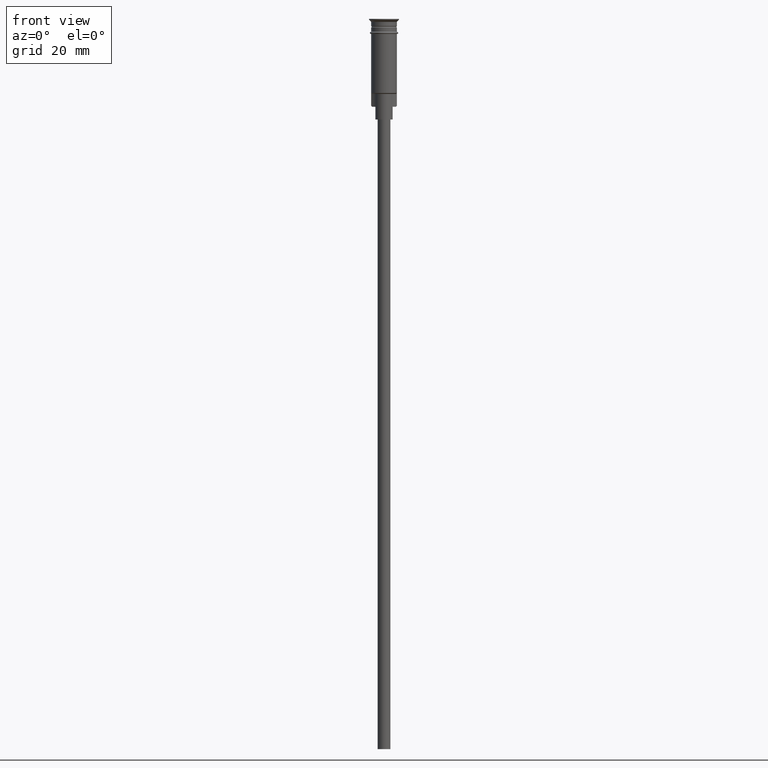
[diagram: clean part render]
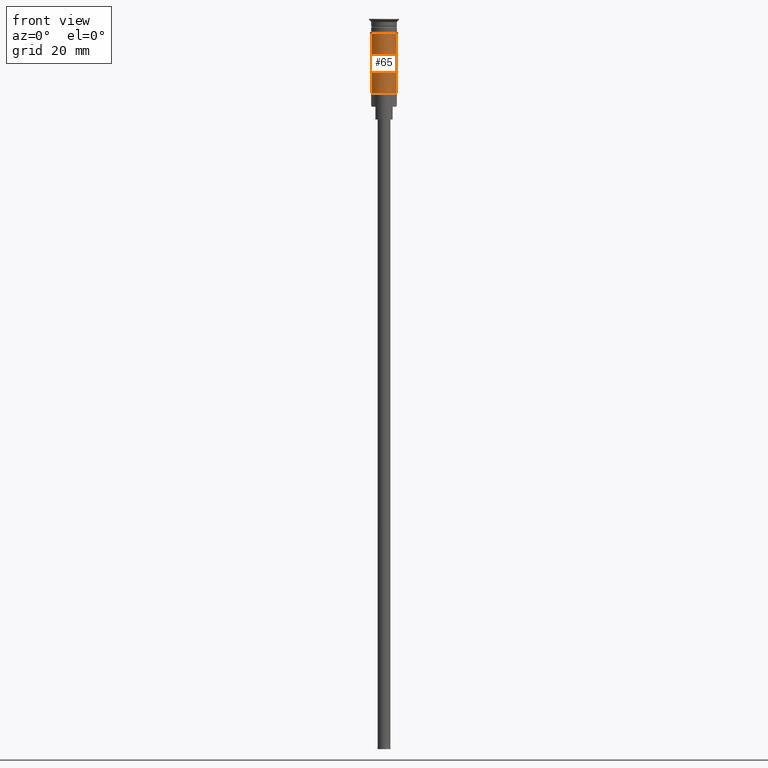
[diagram: same view with one face highlighted and labeled with its STEP entity id]
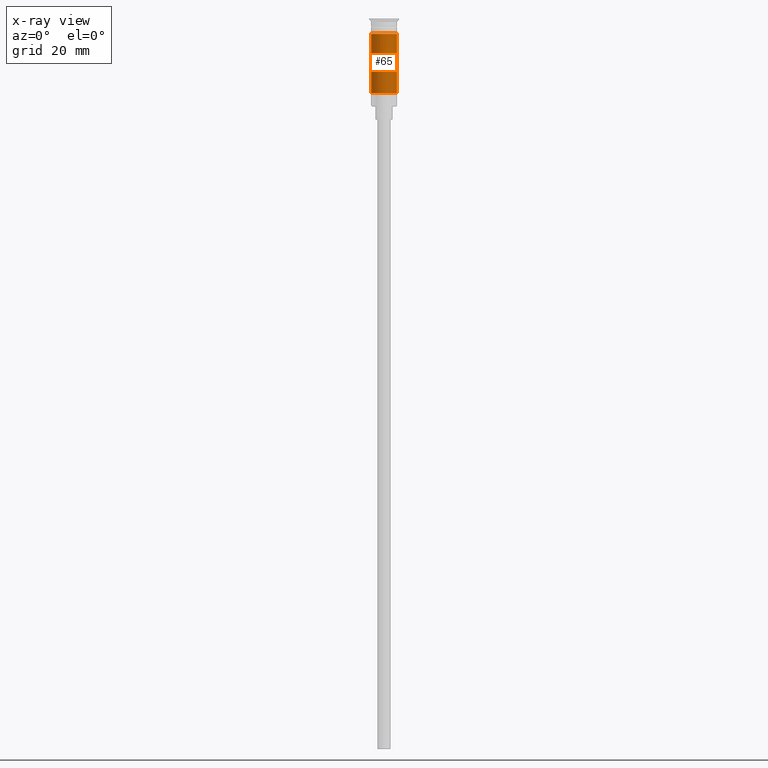
[diagram: x-ray of the same camera — body ghosted, the highlighted face saturated]
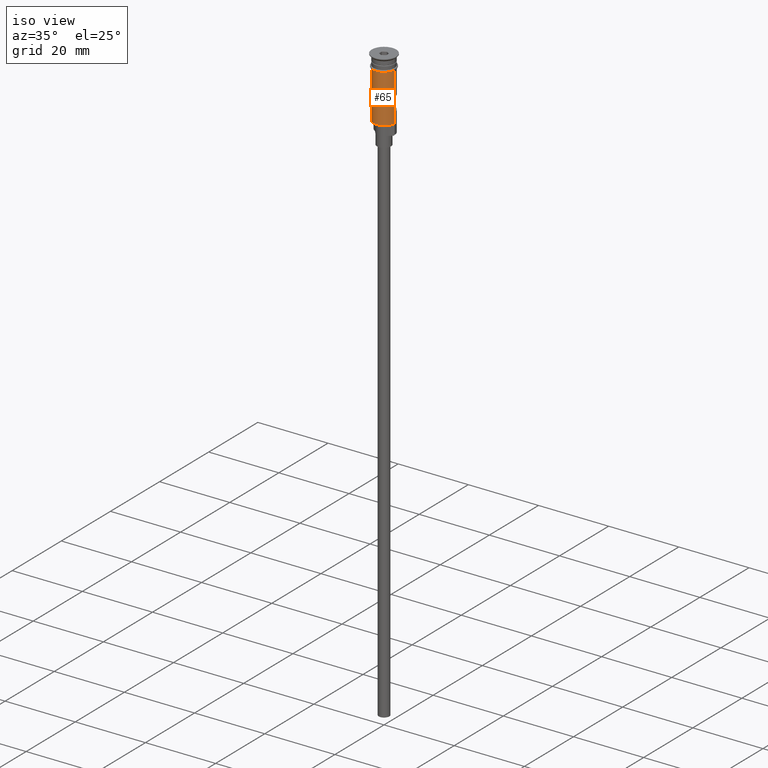
[diagram: same view with one face highlighted and labeled with its STEP entity id]
A machine part, front view. The second image highlights one B-rep face of the part: STEP entity #65.
The next image is the same camera in x-ray: the body ghosted, the highlighted face saturated — about 0% of this face is hidden behind the body in this view.
A second angle (iso view) of the same face is appended — the face is thin or edge-on in the first view.
In plain terms, the highlighted cylindrical surface (edge-blend (fillet) strip) has radius 3 mm, axis along (-0, -0, 1).
Its self-contained STEP definition (entity closure, byte-faithful):
#45 = DIRECTION ( 'NONE',  ( -0.000000000000000000, -0.000000000000000000, 1.000000000000000000 ) ) ;
#63 = VERTEX_POINT ( 'NONE', #143 ) ;
#65 = ADVANCED_FACE ( 'NONE', ( #648 ), #1387, .T. ) ;
#70 = ORIENTED_EDGE ( 'NONE', *, *, #958, .F. ) ;
#95 = EDGE_CURVE ( 'NONE', #63, #1208, #1133, .T. ) ;
#106 = VERTEX_POINT ( 'NONE', #513 ) ;
#132 = AXIS2_PLACEMENT_3D ( 'NONE', #1003, #45, #1128 ) ;
#143 = CARTESIAN_POINT ( 'NONE',  ( 2.999999999999996891, 3.673940397442055924E-16, -17.30000000000000782 ) ) ;
#144 = DIRECTION ( 'NONE',  ( -0.000000000000000000, -0.000000000000000000, 1.000000000000000000 ) ) ;
#198 = VERTEX_POINT ( 'NONE', #803 ) ;
#237 = CARTESIAN_POINT ( 'NONE',  ( 2.999999999999998668, 0.000000000000000000, -3.499999999999998668 ) ) ;
#292 = VECTOR ( 'NONE', #1504, 1000.000000000000000 ) ;
#396 = DIRECTION ( 'NONE',  ( -1.000000000000000000, 0.000000000000000000, 0.000000000000000000 ) ) ;
#439 = CARTESIAN_POINT ( 'NONE',  ( 0.000000000000000000, 0.000000000000000000, -3.499999999999998668 ) ) ;
#441 = ORIENTED_EDGE ( 'NONE', *, *, #95, .T. ) ;
#510 = LINE ( 'NONE', #1009, #292 ) ;
#513 = CARTESIAN_POINT ( 'NONE',  ( -2.999999999999999112, 3.673940397442058389E-16, -3.499999999999998668 ) ) ;
#626 = DIRECTION ( 'NONE',  ( -0.000000000000000000, -0.000000000000000000, 1.000000000000000000 ) ) ;
#647 = CIRCLE ( 'NONE', #1122, 2.999999999999996891 ) ;
#648 = FACE_OUTER_BOUND ( 'NONE', #851, .T. ) ;
#750 = VECTOR ( 'NONE', #626, 1000.000000000000000 ) ;
#797 = ORIENTED_EDGE ( 'NONE', *, *, #1312, .T. ) ;
#803 = CARTESIAN_POINT ( 'NONE',  ( -2.999999999999995115, 0.000000000000000000, -17.30000000000000782 ) ) ;
#851 = EDGE_LOOP ( 'NONE', ( #70, #797, #441, #1306 ) ) ;
#865 = AXIS2_PLACEMENT_3D ( 'NONE', #439, #1442, #1175 ) ;
#958 = EDGE_CURVE ( 'NONE', #198, #106, #510, .T. ) ;
#1003 = CARTESIAN_POINT ( 'NONE',  ( 0.000000000000000000, 0.000000000000000000, 0.000000000000000000 ) ) ;
#1009 = CARTESIAN_POINT ( 'NONE',  ( -2.999999999999996891, 3.673940397442055924E-16, 0.000000000000000000 ) ) ;
#1122 = AXIS2_PLACEMENT_3D ( 'NONE', #1510, #144, #396 ) ;
#1128 = DIRECTION ( 'NONE',  ( 1.000000000000000000, 0.000000000000000000, 0.000000000000000000 ) ) ;
#1133 = LINE ( 'NONE', #1378, #750 ) ;
#1175 = DIRECTION ( 'NONE',  ( 1.000000000000000000, 0.000000000000000000, 0.000000000000000000 ) ) ;
#1208 = VERTEX_POINT ( 'NONE', #237 ) ;
#1306 = ORIENTED_EDGE ( 'NONE', *, *, #1464, .F. ) ;
#1312 = EDGE_CURVE ( 'NONE', #198, #63, #647, .T. ) ;
#1378 = CARTESIAN_POINT ( 'NONE',  ( 2.999999999999996891, 0.000000000000000000, 0.000000000000000000 ) ) ;
#1387 = CYLINDRICAL_SURFACE ( 'NONE', #132, 2.999999999999996891 ) ;
#1442 = DIRECTION ( 'NONE',  ( -0.000000000000000000, -0.000000000000000000, 1.000000000000000000 ) ) ;
#1464 = EDGE_CURVE ( 'NONE', #106, #1208, #1563, .T. ) ;
#1504 = DIRECTION ( 'NONE',  ( -0.000000000000000000, -0.000000000000000000, 1.000000000000000000 ) ) ;
#1510 = CARTESIAN_POINT ( 'NONE',  ( 0.000000000000000000, 0.000000000000000000, -17.30000000000000782 ) ) ;
#1563 = CIRCLE ( 'NONE', #865, 2.999999999999998668 ) ;